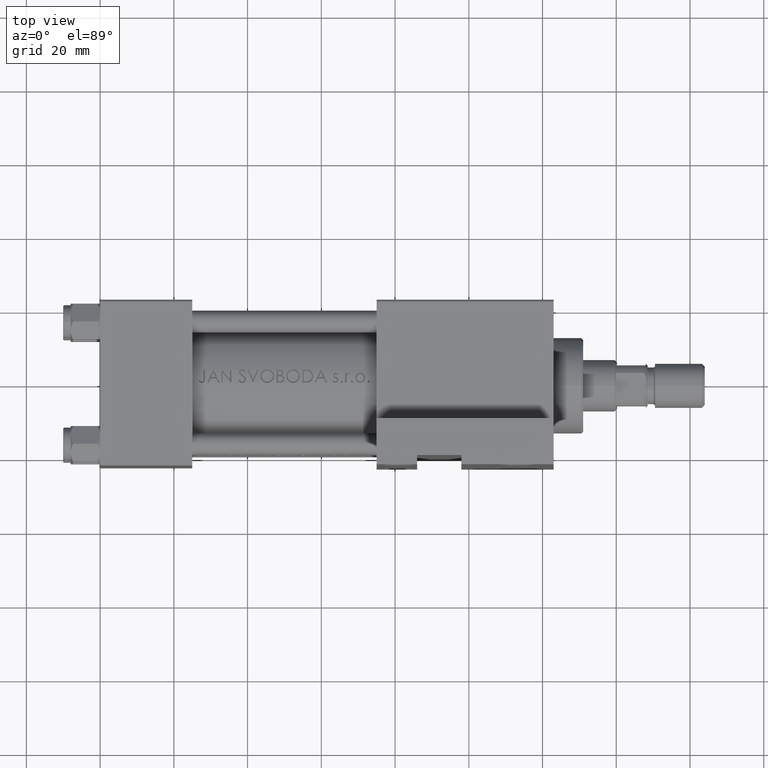
[diagram: clean part render]
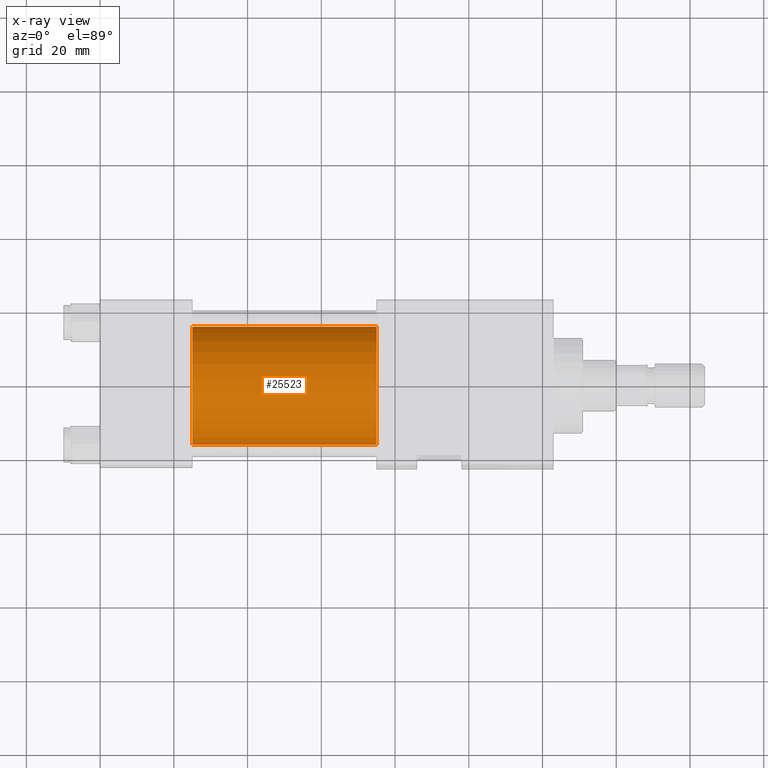
[diagram: x-ray — body ghosted, one internal face saturated and labeled with its STEP entity id]
A machine part, top view, then the same camera in x-ray: the body is ghosted and one INTERNAL B-rep face — a face not visible from any outside direction — is saturated and labeled: STEP entity #25523.
In plain terms, the highlighted cylindrical surface (partial cylindrical patch) has radius 16 mm, axis along (-1, -0, 0).
Its self-contained STEP definition (entity closure, byte-faithful):
#779 = CIRCLE ( 'NONE', #41253, 16.00000000000000000 ) ;
#848 = VERTEX_POINT ( 'NONE', #33294 ) ;
#9505 = ORIENTED_EDGE ( 'NONE', *, *, #12779, .F. ) ;
#10250 = CIRCLE ( 'NONE', #28124, 16.00000000000000000 ) ;
#11736 = CARTESIAN_POINT ( 'NONE',  ( 75.00000000000001421, 6.123233995736727825E-17, 15.50000000000000355 ) ) ;
#12779 = EDGE_CURVE ( 'NONE', #34385, #848, #779, .T. ) ;
#13020 = CARTESIAN_POINT ( 'NONE',  ( 25.00000000000000000, 6.123233995736727825E-17, -0.4999999999999970024 ) ) ;
#14252 = VECTOR ( 'NONE', #45925, 1000.000000000000000 ) ;
#15536 = CYLINDRICAL_SURFACE ( 'NONE', #34916, 16.00000000000000000 ) ;
#16645 = DIRECTION ( 'NONE',  ( -1.000000000000000000, -0.000000000000000000, -0.000000000000000000 ) ) ;
#16660 = ORIENTED_EDGE ( 'NONE', *, *, #44124, .T. ) ;
#16989 = ORIENTED_EDGE ( 'NONE', *, *, #36660, .T. ) ;
#19154 = VERTEX_POINT ( 'NONE', #28394 ) ;
#19427 = DIRECTION ( 'NONE',  ( 0.000000000000000000, 0.000000000000000000, 1.000000000000000000 ) ) ;
#19616 = EDGE_LOOP ( 'NONE', ( #16660, #16989, #9505, #21241 ) ) ;
#19770 = DIRECTION ( 'NONE',  ( 0.000000000000000000, 0.000000000000000000, -1.000000000000000000 ) ) ;
#19851 = DIRECTION ( 'NONE',  ( 1.000000000000000000, 0.000000000000000000, 0.000000000000000000 ) ) ;
#21241 = ORIENTED_EDGE ( 'NONE', *, *, #48198, .F. ) ;
#23303 = FACE_OUTER_BOUND ( 'NONE', #19616, .T. ) ;
#25523 = ADVANCED_FACE ( 'NONE', ( #23303 ), #15536, .F. ) ;
#28124 = AXIS2_PLACEMENT_3D ( 'NONE', #38283, #30490, #19770 ) ;
#28394 = CARTESIAN_POINT ( 'NONE',  ( 75.00000000000001421, 2.020667218593132311E-15, -16.49999999999999645 ) ) ;
#30490 = DIRECTION ( 'NONE',  ( 1.000000000000000000, 0.000000000000000000, 0.000000000000000000 ) ) ;
#30776 = LINE ( 'NONE', #38327, #35019 ) ;
#31317 = CARTESIAN_POINT ( 'NONE',  ( 75.00000000000001421, 6.123233995736727825E-17, 15.50000000000000355 ) ) ;
#33294 = CARTESIAN_POINT ( 'NONE',  ( 25.00000000000000000, 2.020667218593132311E-15, -16.49999999999999645 ) ) ;
#34385 = VERTEX_POINT ( 'NONE', #36798 ) ;
#34519 = DIRECTION ( 'NONE',  ( -1.000000000000000000, -0.000000000000000000, -0.000000000000000000 ) ) ;
#34916 = AXIS2_PLACEMENT_3D ( 'NONE', #41107, #34519, #19427 ) ;
#35019 = VECTOR ( 'NONE', #16645, 1000.000000000000000 ) ;
#36660 = EDGE_CURVE ( 'NONE', #19154, #848, #30776, .T. ) ;
#36798 = CARTESIAN_POINT ( 'NONE',  ( 25.00000000000000000, 6.123233995736727825E-17, 15.50000000000000355 ) ) ;
#37917 = LINE ( 'NONE', #31317, #14252 ) ;
#38283 = CARTESIAN_POINT ( 'NONE',  ( 75.00000000000001421, 6.123233995736727825E-17, -0.4999999999999970024 ) ) ;
#38327 = CARTESIAN_POINT ( 'NONE',  ( 75.00000000000001421, 2.020667218593132311E-15, -16.49999999999999645 ) ) ;
#39884 = VERTEX_POINT ( 'NONE', #11736 ) ;
#41107 = CARTESIAN_POINT ( 'NONE',  ( 75.00000000000001421, 6.123233995736727825E-17, -0.4999999999999970024 ) ) ;
#41253 = AXIS2_PLACEMENT_3D ( 'NONE', #13020, #19851, #45900 ) ;
#44124 = EDGE_CURVE ( 'NONE', #39884, #19154, #10250, .T. ) ;
#45900 = DIRECTION ( 'NONE',  ( 0.000000000000000000, 0.000000000000000000, -1.000000000000000000 ) ) ;
#45925 = DIRECTION ( 'NONE',  ( -1.000000000000000000, -0.000000000000000000, -0.000000000000000000 ) ) ;
#48198 = EDGE_CURVE ( 'NONE', #39884, #34385, #37917, .T. ) ;